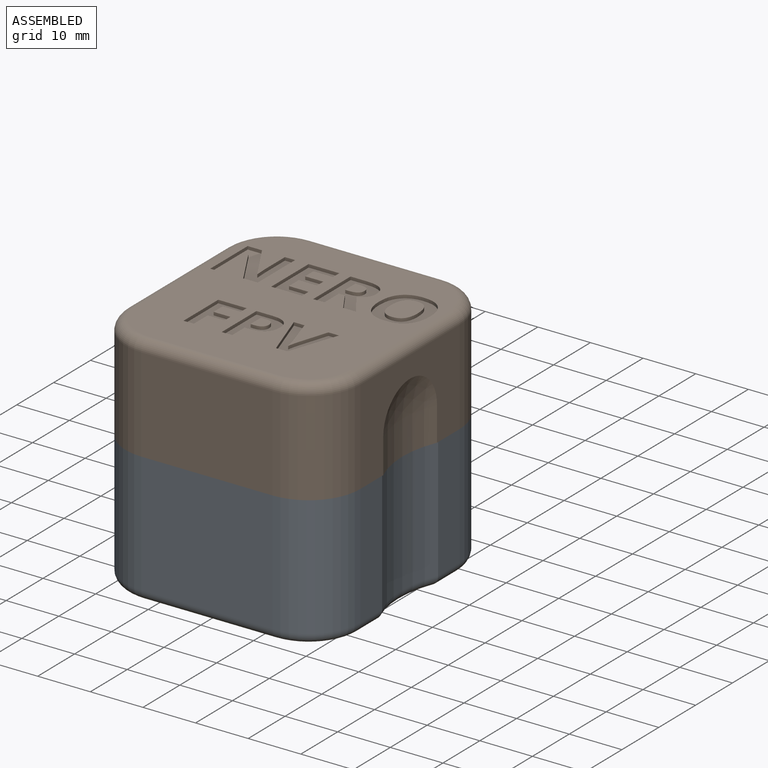
[diagram: assembled view]
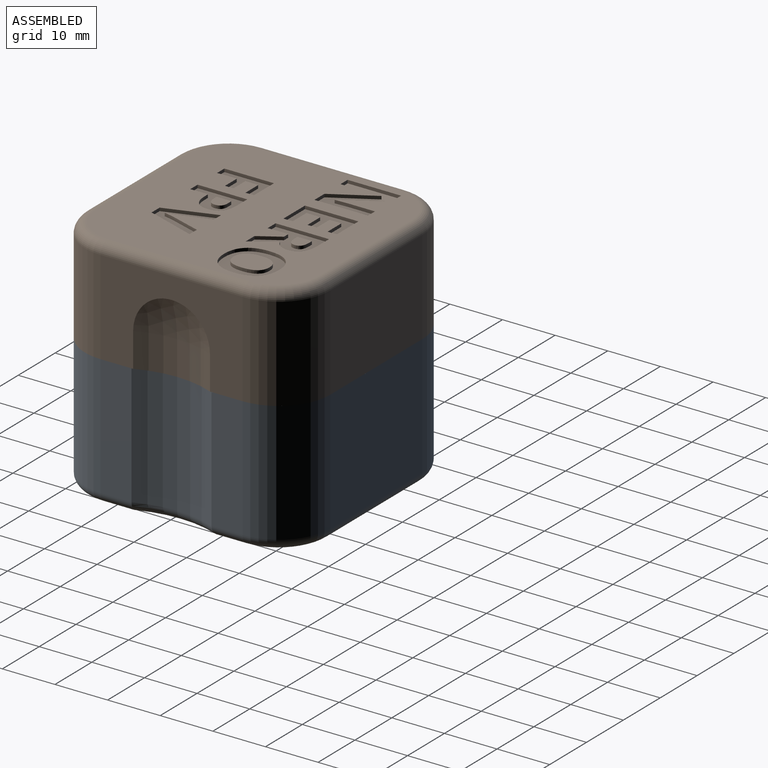
[diagram: assembled view, second angle]
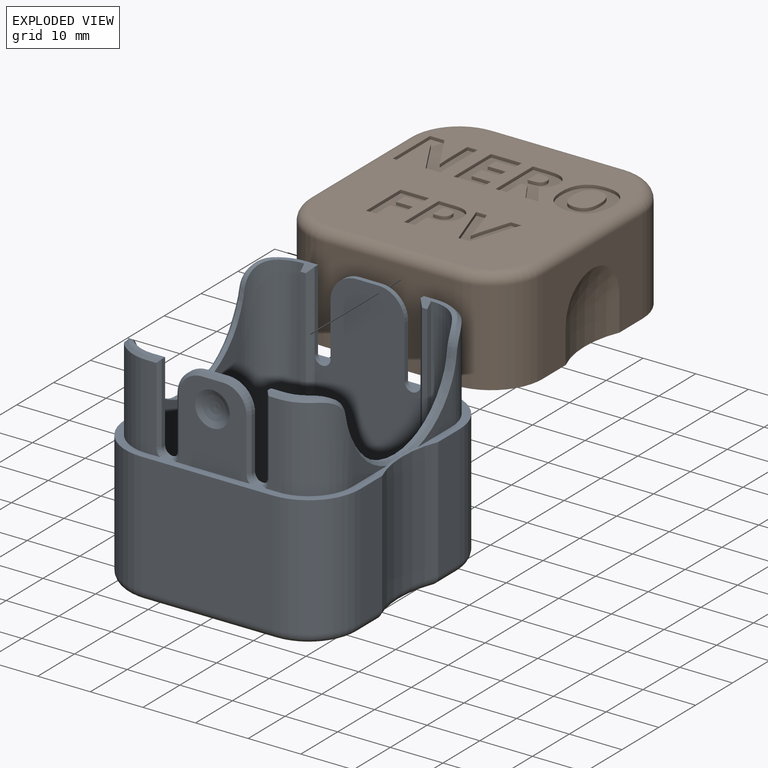
[diagram: exploded view]
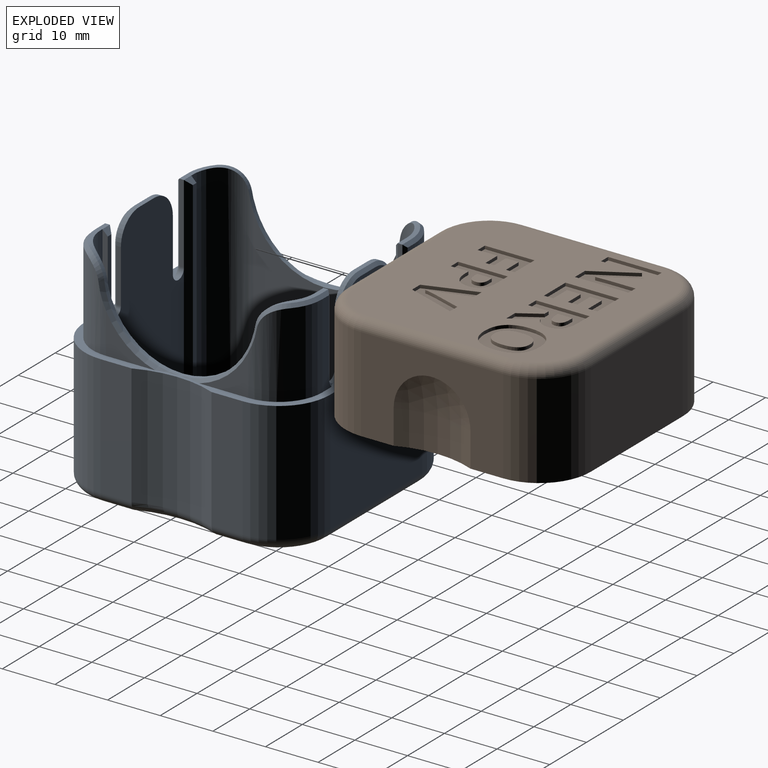
[diagram: exploded view, second angle]
ASSEMBLY  parts=2 mates=2
PART A: 141 faces, bbox 46.7x48.7x42.1 mm
  f0: plane 23x5.9mm, normal (1,0,0), area 135.7mm2, adj f25,f27,f84,f89
  f1: plane 23x5.9mm, normal (-1,0,0), area 135.7mm2, adj f25,f29,f83,f96
  f2: plane 42.6x40.6mm, normal (0,0,-1), area 1645.2mm2, adj f85,f86,f87,f88,f89,f90,f91,f92
  f3: plane 38.6x0.45mm, normal (0,1,0), area 17.4mm2, adj f4,f40,f43,f73
  f4: plane 40.6x38.6mm, normal (0,0,1), area 1521.5mm2, adj f3,f5,f6,f7,f14,f15,f23,f24
  f5: plane 38.6x20.1mm, normal (0,1,0), area 667.5mm2, adj f4,f20,f46,f48,f55,f56,f65,f66
  f6: plane 38.6x0.45mm, normal (0,-1,0), area 17.4mm2, adj f4,f13,f14,f70
  f7: plane 38.6x20.1mm, normal (0,-1,0), area 667.5mm2, adj f4,f21,f49,f51,f53,f54,f63,f64
  f8: plane 7.53x1.92mm, normal (0,0,1), area 6.4mm2, adj f15,f23,f50,f60,f75,f137,f139
  f9: plane 9.29x7.74mm, normal (1,0,0), area 25.7mm2, adj f10,f25,f110
  f10: cylinder r=8.3mm len=16mm, axis (0,0,-1), area 189mm2, adj f9,f25,f37,f112,f114,f116
  f11: cylinder r=8.3mm len=16mm, axis (0,0,-1), area 189mm2, adj f12,f19,f25,f133,f135,f137
  f12: plane 9.29x7.74mm, normal (-1,0,0), area 25.7mm2, adj f11,f25,f131
  f13: plane 7.53x1.92mm, normal (0,0,1), area 6.4mm2, adj f6,f14,f52,f59,f76,f116,f118
  f14: cylinder r=6.8mm len=38.6mm, axis (0,0,-1), area 394.5mm2, adj f4,f6,f13,f44,f57,f59
  f15: cylinder r=6.8mm len=38.6mm, axis (0,0,-1), area 394.5mm2, adj f4,f8,f23,f41,f58,f60
  f16: plane 16x14.16mm, normal (0,-1,0), area 164.5mm2, adj f25,f98,f103,f105,f107,f109,f111,f113
  f17: plane 16x2.48mm, normal (0,-1,0), area 29.9mm2, adj f25,f39,f117,f119,f121
  f18: plane 16x14.16mm, normal (0,1,0), area 164.5mm2, adj f25,f97,f124,f126,f128,f130,f132,f134
  f19: plane 16x2.48mm, normal (0,1,0), area 29.9mm2, adj f11,f25,f138,f139,f140
  f20: plane 4.1x0.9mm, normal (0,0,1), area 3.7mm2, adj f5,f55,f56,f109
  f21: plane 4.1x0.9mm, normal (0,0,1), area 3.7mm2, adj f7,f53,f54,f130
  f22: plane 7.53x1.92mm, normal (0,0,1), area 6.4mm2, adj f24,f42,f45,f61,f78,f121,f123
  f23: plane 38.6x0.45mm, normal (0,-1,0), area 17.4mm2, adj f4,f8,f15,f67
  f24: plane 38.6x0.45mm, normal (0,1,0), area 17.4mm2, adj f4,f22,f42,f71
  f25: plane 47.05x45.05mm, normal (0,0,1), area 221.9mm2, adj f0,f1,f9,f10,f11,f12,f16,f17
  f26: plane 23x5.9mm, normal (1,0,0), area 135.7mm2, adj f25,f33,f84,f85
  f27: cylinder r=9.8mm len=23mm, axis (0,0,-1), area 354.1mm2, adj f0,f25,f28,f91
  f28: plane 25x23mm, normal (0,1,0), area 575mm2, adj f25,f27,f29,f93
  f29: cylinder r=9.8mm len=23mm, axis (0,0,-1), area 354.1mm2, adj f1,f25,f28,f95
  f30: plane 23x5.9mm, normal (-1,0,0), area 135.7mm2, adj f25,f31,f83,f92
  f31: cylinder r=9.8mm len=23mm, axis (0,0,-1), area 354.1mm2, adj f25,f30,f32,f90
  f32: plane 25x23mm, normal (0,-1,0), area 575mm2, adj f25,f31,f33,f88
  f33: cylinder r=9.8mm len=23mm, axis (0,0,-1), area 354.1mm2, adj f25,f26,f32,f86
  f34: plane 16x2.48mm, normal (0,-1,0), area 29.9mm2, adj f25,f35,f99,f100,f101
  f35: cylinder r=8.3mm len=16mm, axis (0,0,-1), area 189mm2, adj f25,f34,f36,f102,f104,f106
  f36: plane 9.29x7.74mm, normal (1,0,0), area 25.7mm2, adj f25,f35,f108
  f37: plane 16x2.48mm, normal (0,1,0), area 29.9mm2, adj f10,f25,f118,f120,f122
  f38: plane 9.29x7.74mm, normal (-1,0,0), area 25.7mm2, adj f25,f39,f129
  f39: cylinder r=8.3mm len=16mm, axis (0,0,-1), area 189mm2, adj f17,f25,f38,f123,f125,f127
  f40: plane 7.53x1.92mm, normal (0,0,1), area 6.4mm2, adj f3,f43,f47,f62,f77,f100,f102
  f41: plane 31.21x27mm, normal (1,0,0), area 662.3mm2, adj f4,f15,f42,f58
  f42: cylinder r=6.8mm len=38.6mm, axis (0,0,-1), area 394.5mm2, adj f4,f22,f24,f41,f58,f61
  f43: cylinder r=6.8mm len=38.6mm, axis (0,0,-1), area 394.5mm2, adj f3,f4,f40,f44,f57,f62
  f44: plane 31.21x27mm, normal (-1,0,0), area 662.3mm2, adj f4,f14,f43,f57
  f45: plane 15.1x0.9mm, normal (1,0,0), area 13.6mm2, adj f22,f65,f80,f119
  f46: plane 10.1x0.9mm, normal (-1,0,0), area 9.1mm2, adj f5,f55,f65,f113
  f47: plane 15.1x0.9mm, normal (-1,0,0), area 13.6mm2, adj f40,f66,f79,f99
  f48: plane 10.1x0.9mm, normal (1,0,0), area 9.1mm2, adj f5,f56,f66,f105
  f49: plane 10.1x0.9mm, normal (-1,0,0), area 9.1mm2, adj f7,f54,f64,f134
  f50: plane 15.1x0.9mm, normal (1,0,0), area 13.6mm2, adj f8,f64,f81,f140
  f51: plane 10.1x0.9mm, normal (1,0,0), area 9.1mm2, adj f7,f53,f63,f126
  f52: plane 15.1x0.9mm, normal (-1,0,0), area 13.6mm2, adj f13,f63,f82,f120
  f53: cylinder r=5mm len=5mm, axis (0,1,0), area 7.1mm2, adj f7,f21,f51,f128
  f54: cylinder r=5mm len=5mm, axis (0,-1,0), area 7.1mm2, adj f7,f21,f49,f132
  f55: cylinder r=5mm len=5mm, axis (0,-1,0), area 7.1mm2, adj f5,f20,f46,f111
  f56: cylinder r=5mm len=5mm, axis (0,1,0), area 7.1mm2, adj f5,f20,f48,f107
  f57: cylinder r=14.5mm len=28.68mm, axis (-1,0,0), area 36.8mm2, adj f14,f43,f44,f59,f62,f106,f108,f110
  f58: cylinder r=14.5mm len=28.68mm, axis (-1,0,0), area 36.8mm2, adj f15,f41,f42,f60,f61,f127,f129,f131
  f59: cylinder r=5mm len=4.94mm, axis (-1,0,0), area 6.5mm2, adj f13,f14,f57,f114
  f60: cylinder r=5mm len=4.94mm, axis (-1,0,0), area 6.5mm2, adj f8,f15,f58,f135
  f61: cylinder r=5mm len=4.94mm, axis (-1,0,0), area 6.5mm2, adj f22,f42,f58,f125
  f62: cylinder r=5mm len=4.94mm, axis (-1,0,0), area 6.5mm2, adj f40,f43,f57,f104
  f63: cylinder r=1.5mm len=3mm, axis (0,1,0), area 4.2mm2, adj f7,f51,f52,f122,f124
  f64: cylinder r=1.5mm len=3mm, axis (0,1,0), area 4.2mm2, adj f7,f49,f50,f136,f138
  f65: cylinder r=1.5mm len=3mm, axis (0,1,0), area 4.2mm2, adj f5,f45,f46,f115,f117
  f66: cylinder r=1.5mm len=3mm, axis (0,1,0), area 4.2mm2, adj f5,f47,f48,f101,f103
  f67: plane 38.6x1mm, normal (-1,0,0), area 38.1mm2, adj f4,f23,f68,f75
  f68: plane 37.6x1mm, normal (0,-1,0), area 37.6mm2, adj f4,f67,f75,f81
  f69: plane 37.6x1mm, normal (0,-1,0), area 37.6mm2, adj f4,f70,f76,f82
  f70: plane 38.6x1mm, normal (1,0,0), area 38.1mm2, adj f4,f6,f69,f76
  f71: plane 38.6x1mm, normal (-1,0,0), area 38.1mm2, adj f4,f24,f72,f78
  f72: plane 37.6x1mm, normal (0,1,0), area 37.6mm2, adj f4,f71,f78,f80
  f73: plane 38.6x1mm, normal (1,0,0), area 38.1mm2, adj f3,f4,f74,f77
  f74: plane 37.6x1mm, normal (0,1,0), area 37.6mm2, adj f4,f73,f77,f79
  f75: plane 2x1mm, normal (0,-0.71,0.71), area 2.1mm2, adj f8,f67,f68,f81
  f76: plane 2x1mm, normal (0,-0.71,0.71), area 2.1mm2, adj f13,f69,f70,f82
  f77: plane 2x1mm, normal (0,0.71,0.71), area 2.1mm2, adj f40,f73,f74,f79
  f78: plane 2x1mm, normal (0,0.71,0.71), area 2.1mm2, adj f22,f71,f72,f80
  f79: plane 38.6x1mm, normal (-0.71,0.71,0), area 53.9mm2, adj f4,f5,f47,f74,f77
  f80: plane 38.6x1mm, normal (0.71,0.71,0), area 53.9mm2, adj f4,f5,f45,f72,f78
  f81: plane 38.6x1mm, normal (0.71,-0.71,0), area 53.9mm2, adj f4,f7,f50,f68,f75
  f82: plane 38.6x1mm, normal (-0.71,-0.71,0), area 53.9mm2, adj f4,f7,f52,f69,f76
  f83: cylinder r=20mm len=23mm, axis (0,0,-1), area 358.6mm2, adj f1,f25,f30,f94
  f84: cylinder r=20mm len=23mm, axis (0,0,-1), area 358.6mm2, adj f0,f25,f26,f87
  f85: cylinder r=2mm len=5.9mm, axis (0,1,0), area 17.9mm2, adj f2,f26,f86,f87
  f86: torus R=7.8mm, axis (0,0,1), area 44.8mm2, adj f2,f33,f85,f88
  f87: torus R=22mm, axis (0,0,1), area 49.5mm2, adj f2,f84,f85,f89
  f88: cylinder r=2mm len=25mm, axis (1,0,0), area 78.5mm2, adj f2,f32,f86,f90
  f89: cylinder r=2mm len=5.9mm, axis (0,1,0), area 17.9mm2, adj f0,f2,f87,f91
  f90: torus R=7.8mm, axis (0,0,1), area 44.8mm2, adj f2,f31,f88,f92
  f91: torus R=7.8mm, axis (0,0,1), area 44.8mm2, adj f2,f27,f89,f93
  f92: cylinder r=2mm len=5.9mm, axis (0,-1,0), area 17.9mm2, adj f2,f30,f90,f94
  f93: cylinder r=2mm len=25mm, axis (-1,0,0), area 78.5mm2, adj f2,f28,f91,f95
  f94: torus R=22mm, axis (0,0,1), area 49.5mm2, adj f2,f83,f92,f96
  f95: torus R=7.8mm, axis (0,0,1), area 44.8mm2, adj f2,f29,f93,f96
  f96: cylinder r=2mm len=5.9mm, axis (0,-1,0), area 17.9mm2, adj f1,f2,f94,f95
  f97: sphere r=7.21mm, area 36.2mm2, adj f18
  f98: sphere r=6.5mm, area 36.8mm2, adj f16
  f99: plane 15.1x0.6mm, normal (-0.71,-0.71,0), area 12.6mm2, adj f34,f47,f100,f101
  f100: plane 2.45x0.6mm, normal (0,-0.71,0.71), area 1.8mm2, adj f34,f40,f99,f102
  f101: cone r=2.1mm half-angle=45deg, axis (0,-1,0), area 1.8mm2, adj f25,f34,f66,f99
  f102: cone r=7.7mm half-angle=45deg, axis (0,0,-1), area 4.9mm2, adj f35,f40,f100,f104
  f103: cone r=2.1mm half-angle=45deg, axis (0,-1,0), area 1.8mm2, adj f16,f25,f66,f105
  f104: bspline ~5.4x4.35mm, area 6.9mm2, adj f35,f62,f102,f106
  f105: plane 10.1x0.6mm, normal (0.71,-0.71,0), area 8.6mm2, adj f16,f48,f103,f107
  f106: bspline ~4.61x2.08mm, area 4.2mm2, adj f35,f57,f104,f108
  f107: cone r=4.4mm half-angle=45deg, axis (0,1,0), area 6.3mm2, adj f16,f56,f105,f109
  f108: cone r=15.1mm half-angle=45deg, axis (1,0,0), area 12.1mm2, adj f25,f36,f57,f106
  f109: plane 4.1x0.6mm, normal (0,-0.71,0.71), area 3.5mm2, adj f16,f20,f107,f111
  f110: cone r=15.1mm half-angle=45deg, axis (1,0,0), area 12.1mm2, adj f9,f25,f57,f112
  f111: cone r=4.4mm half-angle=45deg, axis (0,1,0), area 6.3mm2, adj f16,f55,f109,f113
  f112: bspline ~4.61x2.08mm, area 4.2mm2, adj f10,f57,f110,f114
  f113: plane 10.1x0.6mm, normal (-0.71,-0.71,0), area 8.6mm2, adj f16,f46,f111,f115
  f114: bspline ~5.4x4.35mm, area 6.9mm2, adj f10,f59,f112,f116
  f115: cone r=2.1mm half-angle=45deg, axis (0,-1,0), area 1.8mm2, adj f16,f25,f65,f113
  f116: cone r=7.7mm half-angle=45deg, axis (0,0,-1), area 4.9mm2, adj f10,f13,f114,f118
  f117: cone r=2.1mm half-angle=45deg, axis (0,-1,0), area 1.8mm2, adj f17,f25,f65,f119
  f118: plane 2.45x0.6mm, normal (0,0.71,0.71), area 1.8mm2, adj f13,f37,f116,f120
  f119: plane 15.1x0.6mm, normal (0.71,-0.71,0), area 12.6mm2, adj f17,f45,f117,f121
  f120: plane 15.1x0.6mm, normal (-0.71,0.71,0), area 12.6mm2, adj f37,f52,f118,f122
  f121: plane 2.45x0.6mm, normal (0,-0.71,0.71), area 1.8mm2, adj f17,f22,f119,f123
  f122: cone r=2.1mm half-angle=45deg, axis (0,1,0), area 1.8mm2, adj f25,f37,f63,f120
  f123: cone r=7.7mm half-angle=45deg, axis (0,0,-1), area 4.9mm2, adj f22,f39,f121,f125
  f124: cone r=2.1mm half-angle=45deg, axis (0,1,0), area 1.8mm2, adj f18,f25,f63,f126
  f125: bspline ~5.4x4.35mm, area 6.9mm2, adj f39,f61,f123,f127
  f126: plane 10.1x0.6mm, normal (0.71,0.71,0), area 8.6mm2, adj f18,f51,f124,f128
  f127: bspline ~4.61x2.08mm, area 4.2mm2, adj f39,f58,f125,f129
  f128: cone r=4.4mm half-angle=45deg, axis (0,-1,0), area 6.3mm2, adj f18,f53,f126,f130
  f129: cone r=14.5mm half-angle=45deg, axis (-1,0,0), area 12.1mm2, adj f25,f38,f58,f127
  f130: plane 4.1x0.6mm, normal (0,0.71,0.71), area 3.5mm2, adj f18,f21,f128,f132
  f131: cone r=14.5mm half-angle=45deg, axis (-1,0,0), area 12.1mm2, adj f12,f25,f58,f133
  f132: cone r=4.4mm half-angle=45deg, axis (0,-1,0), area 6.3mm2, adj f18,f54,f130,f134
  f133: bspline ~4.61x2.08mm, area 4.2mm2, adj f11,f58,f131,f135
  f134: plane 10.1x0.6mm, normal (-0.71,0.71,0), area 8.6mm2, adj f18,f49,f132,f136
  f135: bspline ~5.4x4.35mm, area 6.9mm2, adj f11,f60,f133,f137
  f136: cone r=2.1mm half-angle=45deg, axis (0,1,0), area 1.8mm2, adj f18,f25,f64,f134
  f137: cone r=7.7mm half-angle=45deg, axis (0,0,-1), area 4.9mm2, adj f8,f11,f135,f139
  f138: cone r=2.1mm half-angle=45deg, axis (0,1,0), area 1.8mm2, adj f19,f25,f64,f140
  f139: plane 2.45x0.6mm, normal (0,0.71,0.71), area 1.8mm2, adj f8,f19,f137,f140
  f140: plane 15.1x0.6mm, normal (0.71,0.71,0), area 12.6mm2, adj f19,f50,f138,f139
PART B: 154 faces, bbox 47.4x48.2x19.9 mm
  f0: plane 42.6x40.6mm, normal (0,0,-1), area 1331mm2, adj f27,f28,f29,f30,f31,f32,f33,f34
  f1: plane 46.6x44.6mm, normal (0,0,1), area 147.2mm2, adj f2,f3,f4,f5,f6,f7,f8,f9
  f2: plane 27x17.9mm, normal (1,0,0), area 304.8mm2, adj f1,f3,f9,f11,f12,f30
  f3: cylinder r=9.8mm len=17.9mm, axis (0,0,-1), area 275.5mm2, adj f1,f2,f4,f28
  f4: plane 25x17.9mm, normal (0,1,0), area 447.5mm2, adj f1,f3,f5,f27
  f5: cylinder r=9.8mm len=17.9mm, axis (0,0,-1), area 275.5mm2, adj f1,f4,f6,f29
  f6: plane 27x17.9mm, normal (-1,0,0), area 304.8mm2, adj f1,f5,f7,f10,f13,f31
  f7: cylinder r=9.8mm len=17.9mm, axis (0,0,-1), area 275.5mm2, adj f1,f6,f8,f33
  f8: plane 25x17.9mm, normal (0,-1,0), area 447.5mm2, adj f1,f7,f9,f34
  f9: cylinder r=9.8mm len=17.9mm, axis (0,0,-1), area 275.5mm2, adj f1,f2,f8,f32
  f10: cylinder r=18.5mm len=14.59mm, axis (0,0,1), area 97.5mm2, adj f1,f6,f13
  f11: cylinder r=18.5mm len=14.59mm, axis (0,0,1), area 97.5mm2, adj f1,f2,f12
  f12: sphere r=18.5mm, area 87.2mm2, adj f2,f11
  f13: sphere r=18.5mm, area 87.2mm2, adj f6,f10
  f14: plane 27x16.4mm, normal (-1,0,0), area 283.7mm2, adj f15,f21,f22,f24,f25,f142,f145
  f15: cylinder r=8.3mm len=16.4mm, axis (0,0,-1), area 213.8mm2, adj f14,f16,f22,f144
  f16: plane 25x16.4mm, normal (0,-1,0), area 379.8mm2, adj f15,f17,f22,f36,f146
  f17: cylinder r=8.3mm len=16.4mm, axis (0,0,-1), area 213.8mm2, adj f16,f18,f22,f148
  f18: plane 27x16.4mm, normal (1,0,0), area 283.7mm2, adj f17,f19,f22,f23,f26,f150,f153
  f19: cylinder r=8.3mm len=16.4mm, axis (0,0,-1), area 213.8mm2, adj f18,f20,f22,f151
  f20: plane 25x16.4mm, normal (0,1,0), area 379.8mm2, adj f19,f21,f22,f35,f149
  f21: cylinder r=8.3mm len=16.4mm, axis (0,0,-1), area 213.8mm2, adj f14,f20,f22,f147
  f22: plane 43.6x41.6mm, normal (0,0,1), area 1754.6mm2, adj f14,f15,f16,f17,f18,f19,f20,f21
  f23: cylinder r=20mm len=15.2mm, axis (0,0,1), area 70.2mm2, adj f18,f26,f152
  f24: cylinder r=20mm len=15.2mm, axis (0,0,1), area 70.2mm2, adj f14,f25,f143
  f25: sphere r=20mm, area 94.2mm2, adj f14,f24
  f26: sphere r=20mm, area 94.2mm2, adj f18,f23
  f27: cylinder r=2mm len=25mm, axis (-1,0,0), area 78.5mm2, adj f0,f4,f28,f29
  f28: torus R=7.8mm, axis (0,0,1), area 44.8mm2, adj f0,f3,f27,f30
  f29: torus R=7.8mm, axis (0,0,1), area 44.8mm2, adj f0,f5,f27,f31
  f30: cylinder r=2mm len=27mm, axis (0,1,0), area 84.8mm2, adj f0,f2,f28,f32
  f31: cylinder r=2mm len=27mm, axis (0,-1,0), area 84.8mm2, adj f0,f6,f29,f33
  f32: torus R=7.8mm, axis (0,0,1), area 44.8mm2, adj f0,f9,f30,f34
  f33: torus R=7.8mm, axis (0,0,1), area 44.8mm2, adj f0,f7,f31,f34
  f34: cylinder r=2mm len=25mm, axis (1,0,0), area 78.5mm2, adj f0,f8,f32,f33
  f35: sphere r=5.79mm, area 32.7mm2, adj f20
  f36: sphere r=5.79mm, area 32.7mm2, adj f16
  f37: plane 2.74x0.6mm, normal (0,-1,0), area 1.6mm2, adj f0,f38,f50,f51
  f38: plane 10.16x0.6mm, normal (-1,0,0), area 6.1mm2, adj f0,f37,f39,f51
  f39: plane 1.94x0.6mm, normal (0,1,0), area 1.2mm2, adj f0,f38,f40,f51
  f40: plane 4.81x0.6mm, normal (1,0,0), area 2.9mm2, adj f0,f39,f41,f51
  f41: extruded ~2.8x0.6mm, area 1.7mm2, adj f0,f40,f42,f51
  f42: plane 0.6x0.05mm, normal (0,1,0), area 0mm2, adj f0,f41,f43,f51
  f43: plane 7.61x4.41mm, normal (-0.87,0.5,0), area 5.3mm2, adj f0,f42,f44,f51
  f44: plane 2.72x0.6mm, normal (0,1,0), area 1.6mm2, adj f0,f43,f45,f51
  f45: plane 10.16x0.6mm, normal (1,0,0), area 6.1mm2, adj f0,f44,f46,f51
  f46: plane 1.93x0.6mm, normal (0,-1,0), area 1.2mm2, adj f0,f45,f47,f51
  f47: plane 4.78x0.6mm, normal (-1,0,0), area 2.9mm2, adj f0,f46,f48,f51
  f48: extruded ~2.9x0.6mm, area 1.7mm2, adj f0,f47,f49,f51
  f49: plane 0.6x0.06mm, normal (0,-1,0), area 0mm2, adj f0,f48,f50,f51
  f50: plane 7.69x4.42mm, normal (0.87,-0.5,0), area 5.3mm2, adj f0,f37,f49,f51
  f51: plane 10.16x9.01mm, normal (0,0,-1), area 58.5mm2, adj f37,f38,f39,f40,f41,f42,f43,f44
  f52: extruded ~2.33x0.95mm, area 1.6mm2, adj f0,f53,f67,f68
  f53: extruded ~2.2x0.89mm, area 1.5mm2, adj f0,f52,f54,f68
  f54: extruded ~2.61x0.74mm, area 1.7mm2, adj f0,f53,f55,f68
  f55: plane 3.01x0.6mm, normal (0,1,0), area 1.8mm2, adj f0,f54,f56,f68
  f56: plane 9.44x0.6mm, normal (1,0,0), area 5.7mm2, adj f0,f55,f57,f68
  f57: plane 2x0.6mm, normal (0,-1,0), area 1.2mm2, adj f0,f56,f58,f68
  f58: plane 3.36x0.6mm, normal (-1,0,0), area 2mm2, adj f0,f57,f59,f68
  f59: plane 0.86x0.6mm, normal (0,-1,0), area 0.5mm2, adj f0,f58,f67,f68
  f60: plane 0.66x0.6mm, normal (0,1,0), area 0.4mm2, adj f61,f66,f68,f69
  f61: plane 2.8x0.6mm, normal (-1,0,0), area 1.7mm2, adj f60,f62,f68,f69
  f62: plane 0.91x0.6mm, normal (0,-1,0), area 0.5mm2, adj f61,f63,f68,f69
  f63: extruded ~1.2x0.6mm, area 0.8mm2, adj f62,f64,f68,f69
  f64: extruded ~1.04x0.6mm, area 0.7mm2, adj f63,f65,f68,f69
  f65: extruded ~1.06x0.6mm, area 0.7mm2, adj f64,f66,f68,f69
  f66: extruded ~1.38x0.6mm, area 0.9mm2, adj f60,f65,f68,f69
  f67: extruded ~2.71x0.81mm, area 1.7mm2, adj f0,f52,f59,f68
  f68: plane 9.44x6.52mm, normal (0,0,-1), area 36.4mm2, adj f52,f53,f54,f55,f56,f57,f58,f59
  f69: plane 2.8x2.5mm, normal (0,0,-1), area 6.2mm2, adj f60,f61,f62,f63,f64,f65,f66
  f70: extruded ~2.57x0.65mm, area 1.6mm2, adj f71,f83,f84,f141
  f71: extruded ~2.57x0.65mm, area 1.6mm2, adj f70,f72,f84,f141
  f72: extruded ~1.94x0.87mm, area 1.3mm2, adj f71,f73,f84,f141
  f73: extruded ~3.43x2.56mm, area 2.9mm2, adj f72,f74,f84,f141
  f74: extruded ~3.43x2.58mm, area 2.9mm2, adj f73,f83,f84,f141
  f75: extruded ~3.88x1.25mm, area 2.5mm2, adj f0,f76,f82,f84
  f76: extruded ~3.88x1.24mm, area 2.5mm2, adj f0,f75,f77,f84
  f77: extruded ~3.58x1.35mm, area 2.4mm2, adj f0,f76,f78,f84
  f78: extruded ~3.6x1.34mm, area 2.4mm2, adj f0,f77,f79,f84
  f79: extruded ~3.88x1.25mm, area 2.5mm2, adj f0,f78,f80,f84
  f80: extruded ~3.89x1.25mm, area 2.5mm2, adj f0,f79,f81,f84
  f81: extruded ~3.59x1.36mm, area 2.4mm2, adj f0,f80,f82,f84
  f82: extruded ~3.59x1.36mm, area 2.4mm2, adj f0,f75,f81,f84
  f83: extruded ~1.93x0.86mm, area 1.3mm2, adj f70,f74,f84,f141
  f84: plane 10.46x9.67mm, normal (0,0,-1), area 54.1mm2, adj f70,f71,f72,f73,f74,f75,f76,f77
  f85: plane 3.9x0.6mm, normal (-1,0,0), area 2.3mm2, adj f0,f86,f103,f104
  f86: plane 1.15x0.6mm, normal (0,-1,0), area 0.7mm2, adj f0,f85,f87,f104
  f87: plane 3.9x2.43mm, normal (0.85,-0.53,0), area 2.8mm2, adj f0,f86,f88,f104
  f88: plane 2.39x0.6mm, normal (0,-1,0), area 1.4mm2, adj f0,f87,f89,f104
  f89: extruded ~4.43x2.99mm, area 3.2mm2, adj f0,f88,f90,f104
  f90: extruded ~1.4x1.09mm, area 1.1mm2, adj f0,f89,f91,f104
  f91: extruded ~1.59x0.6mm, area 1mm2, adj f0,f90,f92,f104
  f92: extruded ~2.29x0.99mm, area 1.6mm2, adj f0,f91,f93,f104
  f93: extruded ~3.07x0.75mm, area 1.9mm2, adj f0,f92,f94,f104
  f94: plane 2.96x0.6mm, normal (0,1,0), area 1.8mm2, adj f0,f93,f95,f104
  f95: plane 10.16x0.6mm, normal (1,0,0), area 6.1mm2, adj f0,f94,f103,f104
  f96: plane 0.69x0.6mm, normal (0,1,0), area 0.4mm2, adj f97,f102,f104,f105
  f97: plane 2.74x0.6mm, normal (-1,0,0), area 1.6mm2, adj f96,f98,f104,f105
  f98: plane 0.65x0.6mm, normal (0,-1,0), area 0.4mm2, adj f97,f99,f104,f105
  f99: extruded ~1.54x0.6mm, area 1mm2, adj f98,f100,f104,f105
  f100: extruded ~1.03x0.6mm, area 0.7mm2, adj f99,f101,f104,f105
  f101: extruded ~1.07x0.6mm, area 0.7mm2, adj f100,f102,f104,f105
  f102: extruded ~1.51x0.6mm, area 0.9mm2, adj f96,f101,f104,f105
  f103: plane 2.16x0.6mm, normal (0,-1,0), area 1.3mm2, adj f0,f85,f95,f104
  f104: plane 10.16x8.12mm, normal (0,0,-1), area 50.4mm2, adj f85,f86,f87,f88,f89,f90,f91,f92
  f105: plane 2.74x2.69mm, normal (0,0,-1), area 6.5mm2, adj f96,f97,f98,f99,f100,f101,f102
  f106: plane 2.02x0.6mm, normal (0,1,0), area 1.2mm2, adj f0,f107,f115,f116
  f107: plane 5.62x1.79mm, normal (0.95,0.3,0), area 3.5mm2, adj f0,f106,f108,f116
  f108: extruded ~2.08x0.6mm, area 1.3mm2, adj f0,f107,f109,f116
  f109: extruded ~0.92x0.6mm, area 0.6mm2, adj f0,f108,f110,f116
  f110: extruded ~1.16x0.6mm, area 0.7mm2, adj f0,f109,f111,f116
  f111: plane 5.62x1.78mm, normal (-0.95,0.3,0), area 3.5mm2, adj f0,f110,f112,f116
  f112: plane 2.02x0.6mm, normal (0,1,0), area 1.2mm2, adj f0,f111,f113,f116
  f113: plane 9.44x3.2mm, normal (0.95,-0.32,0), area 6mm2, adj f0,f112,f114,f116
  f114: plane 2.18x0.6mm, normal (0,-1,0), area 1.3mm2, adj f0,f113,f115,f116
  f115: plane 9.44x3.21mm, normal (-0.95,-0.32,0), area 6mm2, adj f0,f106,f114,f116
  f116: plane 9.44x8.59mm, normal (0,0,-1), area 34.3mm2, adj f106,f107,f108,f109,f110,f111,f112,f113
  f117: plane 1.97x0.6mm, normal (0,-1,0), area 1.2mm2, adj f0,f118,f126,f127
  f118: plane 3.73x0.6mm, normal (-1,0,0), area 2.2mm2, adj f0,f117,f119,f127
  f119: plane 3.2x0.6mm, normal (0,-1,0), area 1.9mm2, adj f0,f118,f120,f127
  f120: plane 1.63x0.6mm, normal (-1,0,0), area 1mm2, adj f0,f119,f121,f127
  f121: plane 3.2x0.6mm, normal (0,1,0), area 1.9mm2, adj f0,f120,f122,f127
  f122: plane 2.43x0.6mm, normal (-1,0,0), area 1.5mm2, adj f0,f121,f123,f127
  f123: plane 3.44x0.6mm, normal (0,-1,0), area 2.1mm2, adj f0,f122,f124,f127
  f124: plane 1.64x0.6mm, normal (-1,0,0), area 1mm2, adj f0,f123,f125,f127
  f125: plane 5.41x0.6mm, normal (0,1,0), area 3.2mm2, adj f0,f124,f126,f127
  f126: plane 9.44x0.6mm, normal (1,0,0), area 5.7mm2, adj f0,f117,f125,f127
  f127: plane 9.44x5.41mm, normal (0,0,-1), area 29.4mm2, adj f117,f118,f119,f120,f121,f122,f123,f124
  f128: plane 5.85x0.6mm, normal (0,-1,0), area 3.5mm2, adj f0,f129,f139,f140
  f129: plane 1.78x0.6mm, normal (-1,0,0), area 1.1mm2, adj f0,f128,f130,f140
  f130: plane 3.7x0.6mm, normal (0,1,0), area 2.2mm2, adj f0,f129,f131,f140
  f131: plane 2.62x0.6mm, normal (-1,0,0), area 1.6mm2, adj f0,f130,f132,f140
  f132: plane 3.44x0.6mm, normal (0,-1,0), area 2.1mm2, adj f0,f131,f133,f140
  f133: plane 1.77x0.6mm, normal (-1,0,0), area 1.1mm2, adj f0,f132,f134,f140
  f134: plane 3.44x0.6mm, normal (0,1,0), area 2.1mm2, adj f0,f133,f135,f140
  f135: plane 2.23x0.6mm, normal (-1,0,0), area 1.3mm2, adj f0,f134,f136,f140
  f136: plane 3.7x0.6mm, normal (0,-1,0), area 2.2mm2, adj f0,f135,f137,f140
  f137: plane 1.77x0.6mm, normal (-1,0,0), area 1.1mm2, adj f0,f136,f138,f140
  f138: plane 5.85x0.6mm, normal (0,1,0), area 3.5mm2, adj f0,f137,f139,f140
  f139: plane 10.16x0.6mm, normal (1,0,0), area 6.1mm2, adj f0,f128,f138,f140
  f140: plane 10.16x5.85mm, normal (0,0,-1), area 41.1mm2, adj f128,f129,f130,f131,f132,f133,f134,f135
  f141: plane 6.86x5.16mm, normal (0,0,-1), area 29.4mm2, adj f70,f71,f72,f73,f74,f83
  f142: plane 6.02x2mm, normal (-0.96,0,0.29), area 12.4mm2, adj f1,f14,f143,f144
  f143: cone r=19.4mm half-angle=16.7deg, axis (0,0,-1), area 32.3mm2, adj f1,f24,f142,f145
  f144: cone r=8.3mm half-angle=16.7deg, axis (0,0,1), area 28.2mm2, adj f1,f15,f142,f146
  f145: plane 6.02x2mm, normal (-0.96,0,0.29), area 12.4mm2, adj f1,f14,f143,f147
  f146: plane 25x2mm, normal (0,-0.96,0.29), area 52.2mm2, adj f1,f16,f144,f148
  f147: cone r=8.3mm half-angle=16.7deg, axis (0,0,1), area 28.2mm2, adj f1,f21,f145,f149
  f148: cone r=8.3mm half-angle=16.7deg, axis (0,0,1), area 28.2mm2, adj f1,f17,f146,f150
  f149: plane 25x2mm, normal (0,0.96,0.29), area 52.2mm2, adj f1,f20,f147,f151
  f150: plane 6.02x2mm, normal (0.96,0,0.29), area 12.4mm2, adj f1,f18,f148,f152
  f151: cone r=8.3mm half-angle=16.7deg, axis (0,0,1), area 28.2mm2, adj f1,f19,f149,f153
  f152: cone r=19.4mm half-angle=16.7deg, axis (0,0,-1), area 32.3mm2, adj f1,f23,f150,f153
  f153: plane 6.02x2mm, normal (0.96,0,0.29), area 12.4mm2, adj f1,f18,f151,f152
PLACE A t=(-8.5,2.81,-6.23)mm fixed
PLACE B rot(axis=(1,0,0),180deg) t=(-8.5,2.81,34.17)mm
MATE fastened B.f4 <-> A.f32  axis (0,-1,0) through (4,-20.49,15.77)mm
MATE cylindrical B.f22 <-> A.f4  axis (0,0,-1) through (-8.5,2.81,34.17)mm
